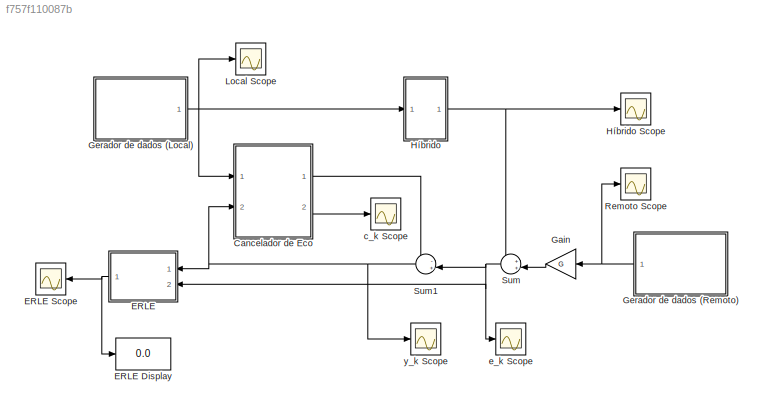
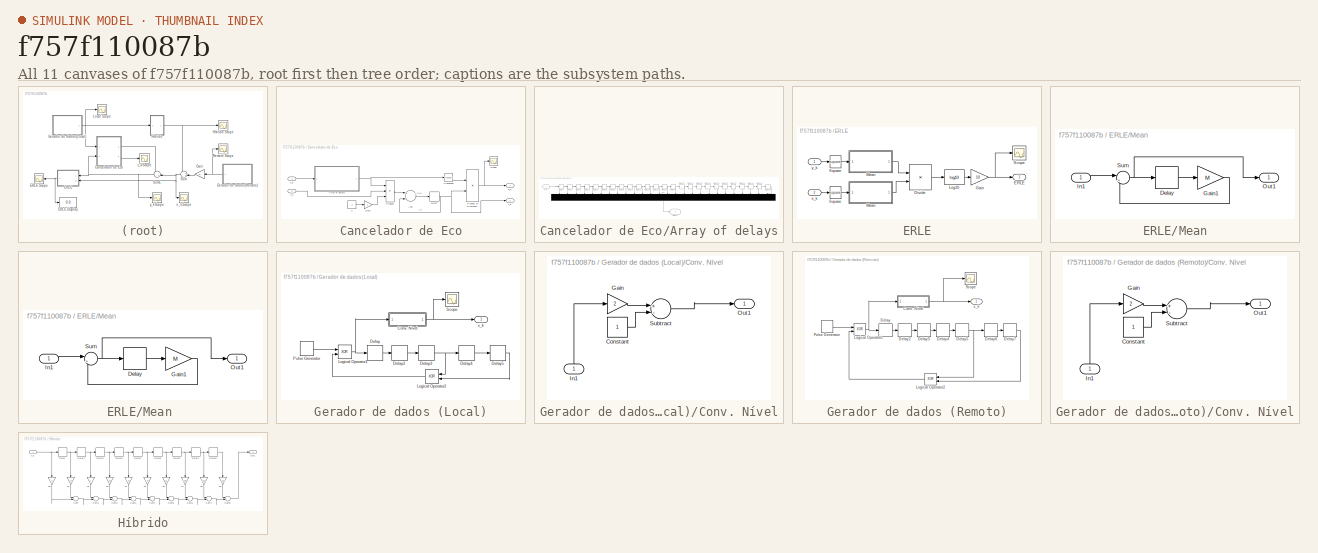
[diagram: thumbnail index - all 11 canvases of the model, root first then tree order]
MODEL slx_f757f110087b
KIND model
CONFIG AbsTol = auto
CONFIG FixedStep = auto
CONFIG MaxStep = auto
CONFIG MinStep = auto
CONFIG RelTol = 1e-3
CONFIG SampleTimeConstraint = Unconstrained
CONFIG Solver = ode45
CONFIG SolverMode = SingleTasking
CONFIG SolverName = ode45
CONFIG StartTime = 0.0
CONFIG StopTime = 10000
BLOCK [SubSystem] Cancelador de Eco
  Ports = [2, 2]
  RequestExecContextInheritance = off
BLOCK [Sum] Cancelador de Eco/Add
  InputSameDT = off
  OutDataTypeStr = Inherit: Inherit via internal rule
  Ports = [2, 1]
  SaturateOnIntegerOverflow = off
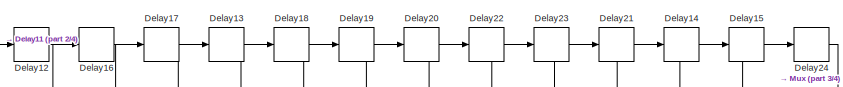
[diagram: Cancelador de Eco/Array of delays - part 1/4, top right region]
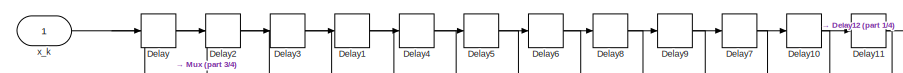
[diagram: Cancelador de Eco/Array of delays - part 2/4, top left region]
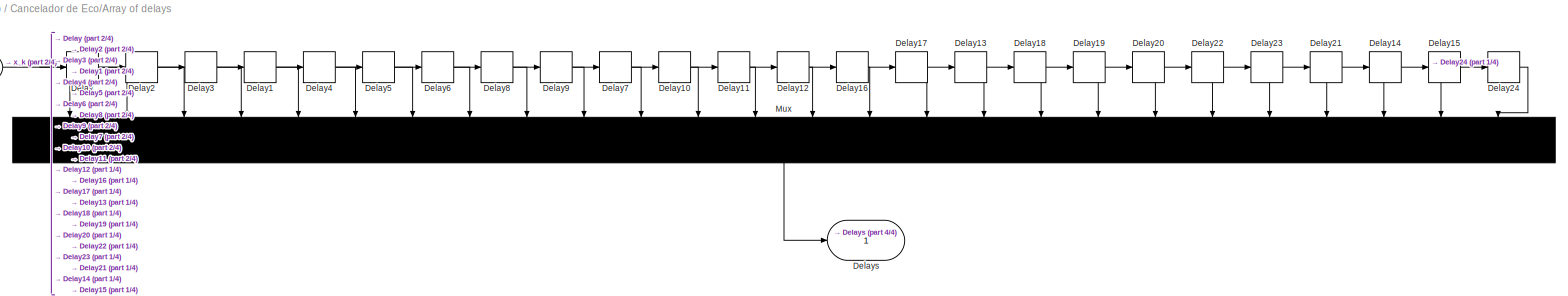
[diagram: Cancelador de Eco/Array of delays - part 3/4, most of the canvas]
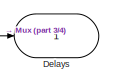
[diagram: Cancelador de Eco/Array of delays - part 4/4, bottom center region]
BLOCK [SubSystem] Cancelador de Eco/Array of delays
  Ports = [1, 1]
  RequestExecContextInheritance = off
BLOCK [Delay] Cancelador de Eco/Array of delays/Delay
  DelayLength = 1
  InputPortMap = u0
  Ports = [1, 1]
  SampleTime = T
BLOCK [Delay] Cancelador de Eco/Array of delays/Delay1
  DelayLength = 1
  InputPortMap = u0
  Ports = [1, 1]
BLOCK [Delay] Cancelador de Eco/Array of delays/Delay10
  DelayLength = 1
  InputPortMap = u0
  Ports = [1, 1]
BLOCK [Delay] Cancelador de Eco/Array of delays/Delay11
  DelayLength = 1
  InputPortMap = u0
  Ports = [1, 1]
BLOCK [Delay] Cancelador de Eco/Array of delays/Delay12
  DelayLength = 1
  InputPortMap = u0
  Ports = [1, 1]
BLOCK [Delay] Cancelador de Eco/Array of delays/Delay13
  DelayLength = 1
  InputPortMap = u0
  Ports = [1, 1]
BLOCK [Delay] Cancelador de Eco/Array of delays/Delay14
  DelayLength = 1
  InputPortMap = u0
  Ports = [1, 1]
BLOCK [Delay] Cancelador de Eco/Array of delays/Delay15
  DelayLength = 1
  InputPortMap = u0
  Ports = [1, 1]
BLOCK [Delay] Cancelador de Eco/Array of delays/Delay16
  DelayLength = 1
  InputPortMap = u0
  Ports = [1, 1]
BLOCK [Delay] Cancelador de Eco/Array of delays/Delay17
  DelayLength = 1
  InputPortMap = u0
  Ports = [1, 1]
BLOCK [Delay] Cancelador de Eco/Array of delays/Delay18
  DelayLength = 1
  InputPortMap = u0
  Ports = [1, 1]
BLOCK [Delay] Cancelador de Eco/Array of delays/Delay19
  DelayLength = 1
  InputPortMap = u0
  Ports = [1, 1]
BLOCK [Delay] Cancelador de Eco/Array of delays/Delay2
  DelayLength = 1
  InputPortMap = u0
  Ports = [1, 1]
BLOCK [Delay] Cancelador de Eco/Array of delays/Delay20
  DelayLength = 1
  InputPortMap = u0
  Ports = [1, 1]
BLOCK [Delay] Cancelador de Eco/Array of delays/Delay21
  DelayLength = 1
  InputPortMap = u0
  Ports = [1, 1]
BLOCK [Delay] Cancelador de Eco/Array of delays/Delay22
  DelayLength = 1
  InputPortMap = u0
  Ports = [1, 1]
BLOCK [Delay] Cancelador de Eco/Array of delays/Delay23
  DelayLength = 1
  InputPortMap = u0
  Ports = [1, 1]
BLOCK [Delay] Cancelador de Eco/Array of delays/Delay24
  DelayLength = 1
  InputPortMap = u0
  Ports = [1, 1]
BLOCK [Delay] Cancelador de Eco/Array of delays/Delay3
  DelayLength = 1
  InputPortMap = u0
  Ports = [1, 1]
BLOCK [Delay] Cancelador de Eco/Array of delays/Delay4
  DelayLength = 1
  InputPortMap = u0
  Ports = [1, 1]
BLOCK [Delay] Cancelador de Eco/Array of delays/Delay5
  DelayLength = 1
  InputPortMap = u0
  Ports = [1, 1]
BLOCK [Delay] Cancelador de Eco/Array of delays/Delay6
  DelayLength = 1
  InputPortMap = u0
  Ports = [1, 1]
BLOCK [Delay] Cancelador de Eco/Array of delays/Delay7
  DelayLength = 1
  InputPortMap = u0
  Ports = [1, 1]
BLOCK [Delay] Cancelador de Eco/Array of delays/Delay8
  DelayLength = 1
  InputPortMap = u0
  Ports = [1, 1]
BLOCK [Delay] Cancelador de Eco/Array of delays/Delay9
  DelayLength = 1
  InputPortMap = u0
  Ports = [1, 1]
BLOCK [Outport] Cancelador de Eco/Array of delays/Delays
  IconDisplay = Port number
BLOCK [Mux] Cancelador de Eco/Array of delays/Mux
  DisplayOption = signals
  Inputs = 26
  Ports = [26, 1]
BLOCK [Inport] Cancelador de Eco/Array of delays/x_k
  IconDisplay = Port number
BLOCK [Delay] Cancelador de Eco/Delay
  DelayLength = 1
  InputPortMap = u0
  Ports = [1, 1]
  SampleTime = T
BLOCK [Gain] Cancelador de Eco/Gain
  Gain = 2
  OutDataTypeStr = Inherit: Inherit via internal rule
  ParamDataTypeStr = Inherit: Inherit via internal rule
  SaturateOnIntegerOverflow = off
BLOCK [Product] Cancelador de Eco/Product
  InputSameDT = off
  Inputs = 3
  Multiplication = Matrix(*)
  OutDataTypeStr = Inherit: Inherit via internal rule
  Ports = [3, 1]
  RndMeth = Floor
  SaturateOnIntegerOverflow = off
BLOCK [Product] Cancelador de Eco/Product of Elements
  InputSameDT = off
  Inputs = **
  Multiplication = Matrix(*)
  OutDataTypeStr = Inherit: Inherit via internal rule
  Ports = [2, 1]
  RndMeth = Floor
  SaturateOnIntegerOverflow = off
BLOCK [Scope] Cancelador de Eco/Scope
  Floating = off
  NumInputPorts = 1
  Ports = [1]
  ShowLegends = off
BLOCK [Math] Cancelador de Eco/Transpose
  Operator = transpose
  Ports = [1, 1]
BLOCK [Outport] Cancelador de Eco/c_k
  IconDisplay = Port number
  Port = 2
BLOCK [Constant] Cancelador de Eco/u
  SampleTime = T
  Value = u
BLOCK [Inport] Cancelador de Eco/x_k
  IconDisplay = Port number
BLOCK [Inport] Cancelador de Eco/y_k
  IconDisplay = Port number
  Port = 2
BLOCK [Outport] Cancelador de Eco/ê_k
  IconDisplay = Port number
BLOCK [SubSystem] ERLE
  Ports = [2, 1]
  RequestExecContextInheritance = off
BLOCK [Display] ERLE Display
  Decimation = 1
  Ports = [1]
BLOCK [Scope] ERLE Scope
  DataFormat = StructureWithTime
  Floating = off
  LimitDataPoints = off
  NumInputPorts = 1
  Ports = [1]
  SaveName = ERLE
  SaveToWorkspace = on
  ShowLegends = off
  TimeRange = 1400
  YMax = -58.25
  YMin = -61.5
BLOCK [Product] ERLE/Divide
  InputSameDT = off
  Inputs = /*
  OutDataTypeStr = Inherit: Inherit via internal rule
  Ports = [2, 1]
  RndMeth = Floor
  SaturateOnIntegerOverflow = off
BLOCK [Outport] ERLE/ERLE
  IconDisplay = Port number
BLOCK [Gain] ERLE/Gain
  Gain = 10
  OutDataTypeStr = Inherit: Inherit via internal rule
  ParamDataTypeStr = Inherit: Inherit via internal rule
  SaturateOnIntegerOverflow = off
BLOCK [Math] ERLE/Log10
  Operator = log10
  Ports = [1, 1]
BLOCK [SubSystem] ERLE/Mean
  Ports = [1, 1]
  RequestExecContextInheritance = off
BLOCK [SubSystem] ERLE/Mean 
  Ports = [1, 1]
  RequestExecContextInheritance = off
BLOCK [Delay] ERLE/Mean /Delay
  DelayLength = 1
  InputPortMap = u0
  Ports = [1, 1]
  SampleTime = T
BLOCK [Gain] ERLE/Mean /Gain1
  Gain = M
  OutDataTypeStr = Inherit: Inherit via internal rule
  ParamDataTypeStr = Inherit: Inherit via internal rule
  SaturateOnIntegerOverflow = off
BLOCK [Inport] ERLE/Mean /In1
  IconDisplay = Port number
BLOCK [Outport] ERLE/Mean /Out1
  IconDisplay = Port number
BLOCK [Sum] ERLE/Mean /Sum
  IconShape = round
  InputSameDT = off
  Inputs = |++
  OutDataTypeStr = Inherit: Inherit via internal rule
  Ports = [2, 1]
  SaturateOnIntegerOverflow = off
BLOCK [Delay] ERLE/Mean/Delay
  DelayLength = 1
  InputPortMap = u0
  Ports = [1, 1]
  SampleTime = T
BLOCK [Gain] ERLE/Mean/Gain1
  Gain = M
  OutDataTypeStr = Inherit: Inherit via internal rule
  ParamDataTypeStr = Inherit: Inherit via internal rule
  SaturateOnIntegerOverflow = off
BLOCK [Inport] ERLE/Mean/In1
  IconDisplay = Port number
BLOCK [Outport] ERLE/Mean/Out1
  IconDisplay = Port number
BLOCK [Sum] ERLE/Mean/Sum
  IconShape = round
  InputSameDT = off
  Inputs = |++
  OutDataTypeStr = Inherit: Inherit via internal rule
  Ports = [2, 1]
  SaturateOnIntegerOverflow = off
BLOCK [Scope] ERLE/Scope
  Floating = off
  NumInputPorts = 1
  Ports = [1]
  ShowLegends = off
BLOCK [Math] ERLE/Square
  Operator = square
  Ports = [1, 1]
BLOCK [Math] ERLE/Square 
  Operator = square
  Ports = [1, 1]
BLOCK [Inport] ERLE/e_k
  IconDisplay = Port number
  Port = 2
BLOCK [Inport] ERLE/y_k
  IconDisplay = Port number
BLOCK [Gain] Gain
  Gain = G
  OutDataTypeStr = Inherit: Inherit via internal rule
  ParamDataTypeStr = Inherit: Inherit via internal rule
  SaturateOnIntegerOverflow = off
BLOCK [SubSystem] Gerador de dados (Local)
  Ports = [0, 1]
  RequestExecContextInheritance = off
BLOCK [SubSystem] Gerador de dados (Local)/Conv. Nível
  Ports = [1, 1]
  RequestExecContextInheritance = off
BLOCK [Constant] Gerador de dados (Local)/Conv. Nível/Constant
BLOCK [Gain] Gerador de dados (Local)/Conv. Nível/Gain
  Gain = 2
  OutDataTypeStr = Inherit: Inherit via internal rule
  ParamDataTypeStr = Inherit: Inherit via internal rule
  SaturateOnIntegerOverflow = off
BLOCK [Inport] Gerador de dados (Local)/Conv. Nível/In1
  IconDisplay = Port number
BLOCK [Outport] Gerador de dados (Local)/Conv. Nível/Out1
  IconDisplay = Port number
BLOCK [Sum] Gerador de dados (Local)/Conv. Nível/Subtract
  InputSameDT = off
  Inputs = +-
  OutDataTypeStr = Inherit: Inherit via internal rule
  Ports = [2, 1]
  SaturateOnIntegerOverflow = off
BLOCK [Delay] Gerador de dados (Local)/Delay
  DelayLength = 1
  InputPortMap = u0
  Ports = [1, 1]
  SampleTime = T
BLOCK [Delay] Gerador de dados (Local)/Delay2
  DelayLength = 1
  InputPortMap = u0
  Ports = [1, 1]
BLOCK [Delay] Gerador de dados (Local)/Delay3
  DelayLength = 1
  InputPortMap = u0
  Ports = [1, 1]
BLOCK [Delay] Gerador de dados (Local)/Delay4
  DelayLength = 1
  InputPortMap = u0
  Ports = [1, 1]
BLOCK [Delay] Gerador de dados (Local)/Delay5
  DelayLength = 1
  InputPortMap = u0
  Ports = [1, 1]
BLOCK [Logic] Gerador de dados (Local)/Logical Operator1
  AllPortsSameDT = off
  Operator = XOR
  OutDataTypeStr = boolean
  Ports = [2, 1]
BLOCK [Logic] Gerador de dados (Local)/Logical Operator2
  AllPortsSameDT = off
  Operator = XOR
  OutDataTypeStr = boolean
  Ports = [2, 1]
BLOCK [DiscretePulseGenerator] Gerador de dados (Local)/Pulse Generator
  Period = 2*T
  Ports = [0, 1]
  PulseType = Time based
  PulseWidth = 50
BLOCK [Scope] Gerador de dados (Local)/Scope
  Floating = off
  NumInputPorts = 1
  Ports = [1]
  ShowLegends = off
  YMax = 1.5
  YMin = -1.5
BLOCK [Outport] Gerador de dados (Local)/x_k
  IconDisplay = Port number
BLOCK [SubSystem] Gerador de dados (Remoto)
  Ports = [0, 1]
  RequestExecContextInheritance = off
BLOCK [SubSystem] Gerador de dados (Remoto)/Conv. Nível
  Ports = [1, 1]
  RequestExecContextInheritance = off
BLOCK [Constant] Gerador de dados (Remoto)/Conv. Nível/Constant
BLOCK [Gain] Gerador de dados (Remoto)/Conv. Nível/Gain
  Gain = 2
  OutDataTypeStr = Inherit: Inherit via internal rule
  ParamDataTypeStr = Inherit: Inherit via internal rule
  SaturateOnIntegerOverflow = off
BLOCK [Inport] Gerador de dados (Remoto)/Conv. Nível/In1
  IconDisplay = Port number
BLOCK [Outport] Gerador de dados (Remoto)/Conv. Nível/Out1
  IconDisplay = Port number
BLOCK [Sum] Gerador de dados (Remoto)/Conv. Nível/Subtract
  InputSameDT = off
  Inputs = +-
  OutDataTypeStr = Inherit: Inherit via internal rule
  Ports = [2, 1]
  SaturateOnIntegerOverflow = off
BLOCK [Delay] Gerador de dados (Remoto)/Delay
  DelayLength = 1
  InputPortMap = u0
  Ports = [1, 1]
  SampleTime = T
BLOCK [Delay] Gerador de dados (Remoto)/Delay2
  DelayLength = 1
  InputPortMap = u0
  Ports = [1, 1]
BLOCK [Delay] Gerador de dados (Remoto)/Delay3
  DelayLength = 1
  InputPortMap = u0
  Ports = [1, 1]
BLOCK [Delay] Gerador de dados (Remoto)/Delay4
  DelayLength = 1
  InputPortMap = u0
  Ports = [1, 1]
BLOCK [Delay] Gerador de dados (Remoto)/Delay5
  DelayLength = 1
  InputPortMap = u0
  Ports = [1, 1]
BLOCK [Delay] Gerador de dados (Remoto)/Delay6
  DelayLength = 1
  InputPortMap = u0
  Ports = [1, 1]
BLOCK [Delay] Gerador de dados (Remoto)/Delay7
  DelayLength = 1
  InputPortMap = u0
  Ports = [1, 1]
BLOCK [Logic] Gerador de dados (Remoto)/Logical Operator1
  AllPortsSameDT = off
  Operator = XOR
  OutDataTypeStr = boolean
  Ports = [2, 1]
BLOCK [Logic] Gerador de dados (Remoto)/Logical Operator2
  AllPortsSameDT = off
  Operator = XOR
  OutDataTypeStr = boolean
  Ports = [2, 1]
BLOCK [DiscretePulseGenerator] Gerador de dados (Remoto)/Pulse Generator
  Period = 2*T
  Ports = [0, 1]
  PulseType = Time based
  PulseWidth = 50
BLOCK [Scope] Gerador de dados (Remoto)/Scope
  Floating = off
  NumInputPorts = 1
  Ports = [1]
  ShowLegends = off
BLOCK [Outport] Gerador de dados (Remoto)/x_k
  IconDisplay = Port number
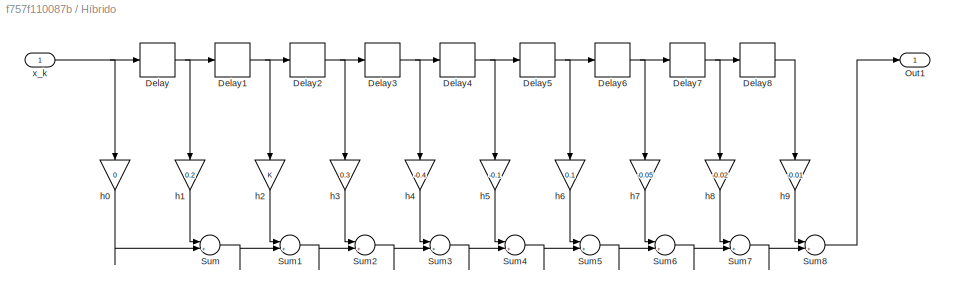
BLOCK [SubSystem] Híbrido
  Ports = [1, 1]
  RequestExecContextInheritance = off
BLOCK [Scope] Híbrido Scope
  DataFormat = StructureWithTime
  Floating = off
  LimitDataPoints = off
  NumInputPorts = 1
  Ports = [1]
  SaveName = Hibrido
  SaveToWorkspace = on
  ShowLegends = off
BLOCK [Delay] Híbrido/Delay
  DelayLength = 1
  InputPortMap = u0
  Ports = [1, 1]
  SampleTime = T
BLOCK [Delay] Híbrido/Delay1
  DelayLength = 1
  InputPortMap = u0
  Ports = [1, 1]
  SampleTime = T
BLOCK [Delay] Híbrido/Delay2
  DelayLength = 1
  InputPortMap = u0
  Ports = [1, 1]
  SampleTime = T
BLOCK [Delay] Híbrido/Delay3
  DelayLength = 1
  InputPortMap = u0
  Ports = [1, 1]
  SampleTime = T
BLOCK [Delay] Híbrido/Delay4
  DelayLength = 1
  InputPortMap = u0
  Ports = [1, 1]
  SampleTime = T
BLOCK [Delay] Híbrido/Delay5
  DelayLength = 1
  InputPortMap = u0
  Ports = [1, 1]
  SampleTime = T
BLOCK [Delay] Híbrido/Delay6
  DelayLength = 1
  InputPortMap = u0
  Ports = [1, 1]
  SampleTime = T
BLOCK [Delay] Híbrido/Delay7
  DelayLength = 1
  InputPortMap = u0
  Ports = [1, 1]
  SampleTime = T
BLOCK [Delay] Híbrido/Delay8
  DelayLength = 1
  InputPortMap = u0
  Ports = [1, 1]
  SampleTime = T
BLOCK [Outport] Híbrido/Out1
  IconDisplay = Port number
BLOCK [Sum] Híbrido/Sum
  IconShape = round
  InputSameDT = off
  Inputs = |++
  OutDataTypeStr = Inherit: Inherit via internal rule
  Ports = [2, 1]
  SaturateOnIntegerOverflow = off
BLOCK [Sum] Híbrido/Sum1
  IconShape = round
  InputSameDT = off
  Inputs = |++
  OutDataTypeStr = Inherit: Inherit via internal rule
  Ports = [2, 1]
  SaturateOnIntegerOverflow = off
BLOCK [Sum] Híbrido/Sum2
  IconShape = round
  InputSameDT = off
  Inputs = |++
  OutDataTypeStr = Inherit: Inherit via internal rule
  Ports = [2, 1]
  SaturateOnIntegerOverflow = off
BLOCK [Sum] Híbrido/Sum3
  IconShape = round
  InputSameDT = off
  Inputs = |++
  OutDataTypeStr = Inherit: Inherit via internal rule
  Ports = [2, 1]
  SaturateOnIntegerOverflow = off
BLOCK [Sum] Híbrido/Sum4
  IconShape = round
  InputSameDT = off
  Inputs = |++
  OutDataTypeStr = Inherit: Inherit via internal rule
  Ports = [2, 1]
  SaturateOnIntegerOverflow = off
BLOCK [Sum] Híbrido/Sum5
  IconShape = round
  InputSameDT = off
  Inputs = |++
  OutDataTypeStr = Inherit: Inherit via internal rule
  Ports = [2, 1]
  SaturateOnIntegerOverflow = off
BLOCK [Sum] Híbrido/Sum6
  IconShape = round
  InputSameDT = off
  Inputs = |++
  OutDataTypeStr = Inherit: Inherit via internal rule
  Ports = [2, 1]
  SaturateOnIntegerOverflow = off
BLOCK [Sum] Híbrido/Sum7
  IconShape = round
  InputSameDT = off
  Inputs = |++
  OutDataTypeStr = Inherit: Inherit via internal rule
  Ports = [2, 1]
  SaturateOnIntegerOverflow = off
BLOCK [Sum] Híbrido/Sum8
  IconShape = round
  InputSameDT = off
  Inputs = |++
  OutDataTypeStr = Inherit: Inherit via internal rule
  Ports = [2, 1]
  SaturateOnIntegerOverflow = off
BLOCK [Gain] Híbrido/h0
  Gain = 0
  OutDataTypeStr = Inherit: Inherit via internal rule
  ParamDataTypeStr = Inherit: Inherit via internal rule
  SaturateOnIntegerOverflow = off
BLOCK [Gain] Híbrido/h1
  Gain = 0.2
  OutDataTypeStr = Inherit: Inherit via internal rule
  ParamDataTypeStr = Inherit: Inherit via internal rule
  SaturateOnIntegerOverflow = off
BLOCK [Gain] Híbrido/h2
  OutDataTypeStr = Inherit: Inherit via internal rule
  ParamDataTypeStr = Inherit: Inherit via internal rule
  SaturateOnIntegerOverflow = off
BLOCK [Gain] Híbrido/h3
  Gain = 0.3
  OutDataTypeStr = Inherit: Inherit via internal rule
  ParamDataTypeStr = Inherit: Inherit via internal rule
  SaturateOnIntegerOverflow = off
BLOCK [Gain] Híbrido/h4
  Gain = -0.4
  OutDataTypeStr = Inherit: Inherit via internal rule
  ParamDataTypeStr = Inherit: Inherit via internal rule
  SaturateOnIntegerOverflow = off
BLOCK [Gain] Híbrido/h5
  Gain = -0.1
  OutDataTypeStr = Inherit: Inherit via internal rule
  ParamDataTypeStr = Inherit: Inherit via internal rule
  SaturateOnIntegerOverflow = off
BLOCK [Gain] Híbrido/h6
  Gain = 0.1
  OutDataTypeStr = Inherit: Inherit via internal rule
  ParamDataTypeStr = Inherit: Inherit via internal rule
  SaturateOnIntegerOverflow = off
BLOCK [Gain] Híbrido/h7
  Gain = -0.05
  OutDataTypeStr = Inherit: Inherit via internal rule
  ParamDataTypeStr = Inherit: Inherit via internal rule
  SaturateOnIntegerOverflow = off
BLOCK [Gain] Híbrido/h8
  Gain = -0.02
  OutDataTypeStr = Inherit: Inherit via internal rule
  ParamDataTypeStr = Inherit: Inherit via internal rule
  SaturateOnIntegerOverflow = off
BLOCK [Gain] Híbrido/h9
  Gain = -0.01
  OutDataTypeStr = Inherit: Inherit via internal rule
  ParamDataTypeStr = Inherit: Inherit via internal rule
  SaturateOnIntegerOverflow = off
BLOCK [Inport] Híbrido/x_k
  IconDisplay = Port number
BLOCK [Scope] Local Scope
  DataFormat = StructureWithTime
  Floating = off
  LimitDataPoints = off
  NumInputPorts = 1
  Ports = [1]
  SaveName = Local
  SaveToWorkspace = on
  ShowLegends = off
BLOCK [Scope] Remoto Scope
  DataFormat = StructureWithTime
  Floating = off
  LimitDataPoints = off
  NumInputPorts = 1
  Ports = [1]
  SaveName = Remoto
  SaveToWorkspace = on
  ShowLegends = off
BLOCK [Sum] Sum
  IconShape = round
  InputSameDT = off
  Inputs = ++|
  OutDataTypeStr = Inherit: Inherit via internal rule
  Ports = [2, 1]
  SaturateOnIntegerOverflow = off
BLOCK [Sum] Sum1
  IconShape = round
  InputSameDT = off
  Inputs = -+|
  OutDataTypeStr = Inherit: Inherit via internal rule
  Ports = [2, 1]
  SaturateOnIntegerOverflow = off
BLOCK [Scope] c_k Scope 
  DataFormat = StructureWithTime
  Floating = off
  LimitDataPoints = off
  NumInputPorts = 1
  Ports = [1]
  SaveName = Coeficientes
  SaveToWorkspace = on
  ShowLegends = off
  ZoomMode = xonly
BLOCK [Scope] e_k Scope
  DataFormat = StructureWithTime
  Floating = off
  LimitDataPoints = off
  NumInputPorts = 1
  Ports = [1]
  SaveName = Eco
  SaveToWorkspace = on
  ShowLegends = off
BLOCK [Scope] y_k Scope
  DataFormat = StructureWithTime
  Floating = off
  LimitDataPoints = off
  NumInputPorts = 1
  Ports = [1]
  SaveName = Erro
  SaveToWorkspace = on
  ShowLegends = off
ANNOTATION Cancelador de Eco: c_k
ANNOTATION Cancelador de Eco: c_{k+1}
LINE Cancelador de Eco/Add:1 -> Cancelador de Eco/Delay:1
NET Cancelador de Eco/Array of delays/Delay10:1 -> Cancelador de Eco/Array of delays/Delay11:1, Cancelador de Eco/Array of delays/Mux:12
NET Cancelador de Eco/Array of delays/Delay11:1 -> Cancelador de Eco/Array of delays/Delay12:1, Cancelador de Eco/Array of delays/Mux:13
NET Cancelador de Eco/Array of delays/Delay12:1 -> Cancelador de Eco/Array of delays/Delay16:1, Cancelador de Eco/Array of delays/Mux:14
NET Cancelador de Eco/Array of delays/Delay13:1 -> Cancelador de Eco/Array of delays/Delay18:1, Cancelador de Eco/Array of delays/Mux:17
NET Cancelador de Eco/Array of delays/Delay14:1 -> Cancelador de Eco/Array of delays/Delay15:1, Cancelador de Eco/Array of delays/Mux:24
NET Cancelador de Eco/Array of delays/Delay15:1 -> Cancelador de Eco/Array of delays/Delay24:1, Cancelador de Eco/Array of delays/Mux:25
NET Cancelador de Eco/Array of delays/Delay16:1 -> Cancelador de Eco/Array of delays/Delay17:1, Cancelador de Eco/Array of delays/Mux:15
NET Cancelador de Eco/Array of delays/Delay17:1 -> Cancelador de Eco/Array of delays/Delay13:1, Cancelador de Eco/Array of delays/Mux:16
NET Cancelador de Eco/Array of delays/Delay18:1 -> Cancelador de Eco/Array of delays/Delay19:1, Cancelador de Eco/Array of delays/Mux:18
NET Cancelador de Eco/Array of delays/Delay19:1 -> Cancelador de Eco/Array of delays/Delay20:1, Cancelador de Eco/Array of delays/Mux:19
NET Cancelador de Eco/Array of delays/Delay1:1 -> Cancelador de Eco/Array of delays/Delay4:1, Cancelador de Eco/Array of delays/Mux:5
NET Cancelador de Eco/Array of delays/Delay20:1 -> Cancelador de Eco/Array of delays/Delay22:1, Cancelador de Eco/Array of delays/Mux:20
NET Cancelador de Eco/Array of delays/Delay21:1 -> Cancelador de Eco/Array of delays/Delay14:1, Cancelador de Eco/Array of delays/Mux:23
NET Cancelador de Eco/Array of delays/Delay22:1 -> Cancelador de Eco/Array of delays/Delay23:1, Cancelador de Eco/Array of delays/Mux:21
NET Cancelador de Eco/Array of delays/Delay23:1 -> Cancelador de Eco/Array of delays/Delay21:1, Cancelador de Eco/Array of delays/Mux:22
LINE Cancelador de Eco/Array of delays/Delay24:1 -> Cancelador de Eco/Array of delays/Mux:26
NET Cancelador de Eco/Array of delays/Delay2:1 -> Cancelador de Eco/Array of delays/Delay3:1, Cancelador de Eco/Array of delays/Mux:3
NET Cancelador de Eco/Array of delays/Delay3:1 -> Cancelador de Eco/Array of delays/Delay1:1, Cancelador de Eco/Array of delays/Mux:4
NET Cancelador de Eco/Array of delays/Delay4:1 -> Cancelador de Eco/Array of delays/Delay5:1, Cancelador de Eco/Array of delays/Mux:6
NET Cancelador de Eco/Array of delays/Delay5:1 -> Cancelador de Eco/Array of delays/Delay6:1, Cancelador de Eco/Array of delays/Mux:7
NET Cancelador de Eco/Array of delays/Delay6:1 -> Cancelador de Eco/Array of delays/Delay8:1, Cancelador de Eco/Array of delays/Mux:8
NET Cancelador de Eco/Array of delays/Delay7:1 -> Cancelador de Eco/Array of delays/Delay10:1, Cancelador de Eco/Array of delays/Mux:11
NET Cancelador de Eco/Array of delays/Delay8:1 -> Cancelador de Eco/Array of delays/Delay9:1, Cancelador de Eco/Array of delays/Mux:9
NET Cancelador de Eco/Array of delays/Delay9:1 -> Cancelador de Eco/Array of delays/Delay7:1, Cancelador de Eco/Array of delays/Mux:10
NET Cancelador de Eco/Array of delays/Delay:1 -> Cancelador de Eco/Array of delays/Delay2:1, Cancelador de Eco/Array of delays/Mux:2
LINE Cancelador de Eco/Array of delays/Mux:1 -> Cancelador de Eco/Array of delays/Delays:1
NET Cancelador de Eco/Array of delays/x_k:1 -> Cancelador de Eco/Array of delays/Delay:1, Cancelador de Eco/Array of delays/Mux:1
NET Cancelador de Eco/Array of delays:1 -> Cancelador de Eco/Product:1, Cancelador de Eco/Transpose:1
NET Cancelador de Eco/Delay:1 -> Cancelador de Eco/Add:2, Cancelador de Eco/Product of Elements:2, Cancelador de Eco/c_k:1
LINE Cancelador de Eco/Gain:1 -> Cancelador de Eco/Product:3
NET Cancelador de Eco/Product of Elements:1 -> Cancelador de Eco/Scope:1, Cancelador de Eco/ê_k:1
LINE Cancelador de Eco/Product:1 -> Cancelador de Eco/Add:1
LINE Cancelador de Eco/Transpose:1 -> Cancelador de Eco/Product of Elements:1
LINE Cancelador de Eco/u:1 -> Cancelador de Eco/Gain:1
LINE Cancelador de Eco/x_k:1 -> Cancelador de Eco/Array of delays:1
LINE Cancelador de Eco/y_k:1 -> Cancelador de Eco/Product:2
LINE Cancelador de Eco:1 -> Sum1:1
LINE Cancelador de Eco:2 -> c_k Scope :1
LINE ERLE/Divide:1 -> ERLE/Log10:1
NET ERLE/Gain:1 -> ERLE/ERLE:1, ERLE/Scope:1
LINE ERLE/Log10:1 -> ERLE/Gain:1
LINE ERLE/Mean /Delay:1 -> ERLE/Mean /Gain1:1
LINE ERLE/Mean /Gain1:1 -> ERLE/Mean /Sum:2
LINE ERLE/Mean /In1:1 -> ERLE/Mean /Sum:1
NET ERLE/Mean /Sum:1 -> ERLE/Mean /Delay:1, ERLE/Mean /Out1:1
LINE ERLE/Mean :1 -> ERLE/Divide:2
LINE ERLE/Mean/Delay:1 -> ERLE/Mean/Gain1:1
LINE ERLE/Mean/Gain1:1 -> ERLE/Mean/Sum:2
LINE ERLE/Mean/In1:1 -> ERLE/Mean/Sum:1
NET ERLE/Mean/Sum:1 -> ERLE/Mean/Delay:1, ERLE/Mean/Out1:1
LINE ERLE/Mean:1 -> ERLE/Divide:1
LINE ERLE/Square :1 -> ERLE/Mean :1
LINE ERLE/Square:1 -> ERLE/Mean:1
LINE ERLE/e_k:1 -> ERLE/Square :1
LINE ERLE/y_k:1 -> ERLE/Square:1
NET ERLE:1 -> ERLE Display:1, ERLE Scope:1
LINE Gain:1 -> Sum:2
LINE Gerador de dados (Local)/Conv. Nível/Constant:1 -> Gerador de dados (Local)/Conv. Nível/Subtract:2
LINE Gerador de dados (Local)/Conv. Nível/Gain:1 -> Gerador de dados (Local)/Conv. Nível/Subtract:1
LINE Gerador de dados (Local)/Conv. Nível/In1:1 -> Gerador de dados (Local)/Conv. Nível/Gain:1
LINE Gerador de dados (Local)/Conv. Nível/Subtract:1 -> Gerador de dados (Local)/Conv. Nível/Out1:1
NET Gerador de dados (Local)/Conv. Nível:1 -> Gerador de dados (Local)/Scope:1, Gerador de dados (Local)/x_k:1
LINE Gerador de dados (Local)/Delay2:1 -> Gerador de dados (Local)/Delay3:1
NET Gerador de dados (Local)/Delay3:1 -> Gerador de dados (Local)/Delay4:1, Gerador de dados (Local)/Logical Operator2:1
LINE Gerador de dados (Local)/Delay4:1 -> Gerador de dados (Local)/Delay5:1
LINE Gerador de dados (Local)/Delay5:1 -> Gerador de dados (Local)/Logical Operator2:2
LINE Gerador de dados (Local)/Delay:1 -> Gerador de dados (Local)/Delay2:1
NET Gerador de dados (Local)/Logical Operator1:1 -> Gerador de dados (Local)/Conv. Nível:1, Gerador de dados (Local)/Delay:1
LINE Gerador de dados (Local)/Logical Operator2:1 -> Gerador de dados (Local)/Logical Operator1:2
LINE Gerador de dados (Local)/Pulse Generator:1 -> Gerador de dados (Local)/Logical Operator1:1
NET Gerador de dados (Local):1 -> Cancelador de Eco:1, Híbrido:1, Local Scope:1
LINE Gerador de dados (Remoto)/Conv. Nível/Constant:1 -> Gerador de dados (Remoto)/Conv. Nível/Subtract:2
LINE Gerador de dados (Remoto)/Conv. Nível/Gain:1 -> Gerador de dados (Remoto)/Conv. Nível/Subtract:1
LINE Gerador de dados (Remoto)/Conv. Nível/In1:1 -> Gerador de dados (Remoto)/Conv. Nível/Gain:1
LINE Gerador de dados (Remoto)/Conv. Nível/Subtract:1 -> Gerador de dados (Remoto)/Conv. Nível/Out1:1
NET Gerador de dados (Remoto)/Conv. Nível:1 -> Gerador de dados (Remoto)/Scope:1, Gerador de dados (Remoto)/x_k:1
LINE Gerador de dados (Remoto)/Delay2:1 -> Gerador de dados (Remoto)/Delay3:1
LINE Gerador de dados (Remoto)/Delay3:1 -> Gerador de dados (Remoto)/Delay4:1
LINE Gerador de dados (Remoto)/Delay4:1 -> Gerador de dados (Remoto)/Delay5:1
NET Gerador de dados (Remoto)/Delay5:1 -> Gerador de dados (Remoto)/Delay6:1, Gerador de dados (Remoto)/Logical Operator2:1
LINE Gerador de dados (Remoto)/Delay6:1 -> Gerador de dados (Remoto)/Delay7:1
LINE Gerador de dados (Remoto)/Delay7:1 -> Gerador de dados (Remoto)/Logical Operator2:2
LINE Gerador de dados (Remoto)/Delay:1 -> Gerador de dados (Remoto)/Delay2:1
NET Gerador de dados (Remoto)/Logical Operator1:1 -> Gerador de dados (Remoto)/Conv. Nível:1, Gerador de dados (Remoto)/Delay:1
LINE Gerador de dados (Remoto)/Logical Operator2:1 -> Gerador de dados (Remoto)/Logical Operator1:2
LINE Gerador de dados (Remoto)/Pulse Generator:1 -> Gerador de dados (Remoto)/Logical Operator1:1
NET Gerador de dados (Remoto):1 -> Gain:1, Remoto Scope:1
NET Híbrido/Delay1:1 -> Híbrido/Delay2:1, Híbrido/h2:1
NET Híbrido/Delay2:1 -> Híbrido/Delay3:1, Híbrido/h3:1
NET Híbrido/Delay3:1 -> Híbrido/Delay4:1, Híbrido/h4:1
NET Híbrido/Delay4:1 -> Híbrido/Delay5:1, Híbrido/h5:1
NET Híbrido/Delay5:1 -> Híbrido/Delay6:1, Híbrido/h6:1
NET Híbrido/Delay6:1 -> Híbrido/Delay7:1, Híbrido/h7:1
NET Híbrido/Delay7:1 -> Híbrido/Delay8:1, Híbrido/h8:1
LINE Híbrido/Delay8:1 -> Híbrido/h9:1
NET Híbrido/Delay:1 -> Híbrido/Delay1:1, Híbrido/h1:1
LINE Híbrido/Sum1:1 -> Híbrido/Sum2:2
LINE Híbrido/Sum2:1 -> Híbrido/Sum3:2
LINE Híbrido/Sum3:1 -> Híbrido/Sum4:2
LINE Híbrido/Sum4:1 -> Híbrido/Sum5:2
LINE Híbrido/Sum5:1 -> Híbrido/Sum6:2
LINE Híbrido/Sum6:1 -> Híbrido/Sum7:2
LINE Híbrido/Sum7:1 -> Híbrido/Sum8:2
LINE Híbrido/Sum8:1 -> Híbrido/Out1:1
LINE Híbrido/Sum:1 -> Híbrido/Sum1:2
LINE Híbrido/h0:1 -> Híbrido/Sum:2
LINE Híbrido/h1:1 -> Híbrido/Sum:1
LINE Híbrido/h2:1 -> Híbrido/Sum1:1
LINE Híbrido/h3:1 -> Híbrido/Sum2:1
LINE Híbrido/h4:1 -> Híbrido/Sum3:1
LINE Híbrido/h5:1 -> Híbrido/Sum4:1
LINE Híbrido/h6:1 -> Híbrido/Sum5:1
LINE Híbrido/h7:1 -> Híbrido/Sum6:1
LINE Híbrido/h8:1 -> Híbrido/Sum7:1
LINE Híbrido/h9:1 -> Híbrido/Sum8:1
NET Híbrido/x_k:1 -> Híbrido/Delay:1, Híbrido/h0:1
NET Híbrido:1 -> Híbrido Scope:1, Sum:1
NET Sum1:1 -> Cancelador de Eco:2, ERLE:1, y_k Scope:1
NET Sum:1 -> ERLE:2, Sum1:2, e_k Scope:1
note: NET lines group one-source signal fan-out (src -> all destinations, sorted); 1:1 wires keep LINE
